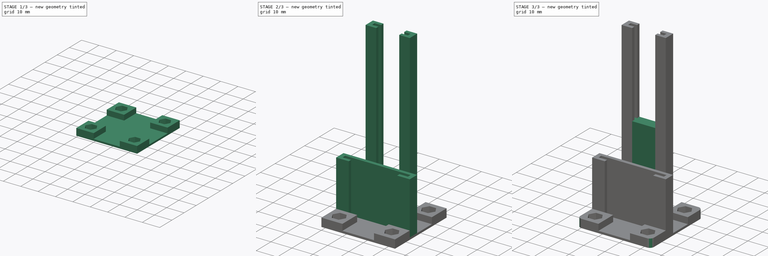
[diagram: build sequence overview — one tinted view per stage of 3, left to right]
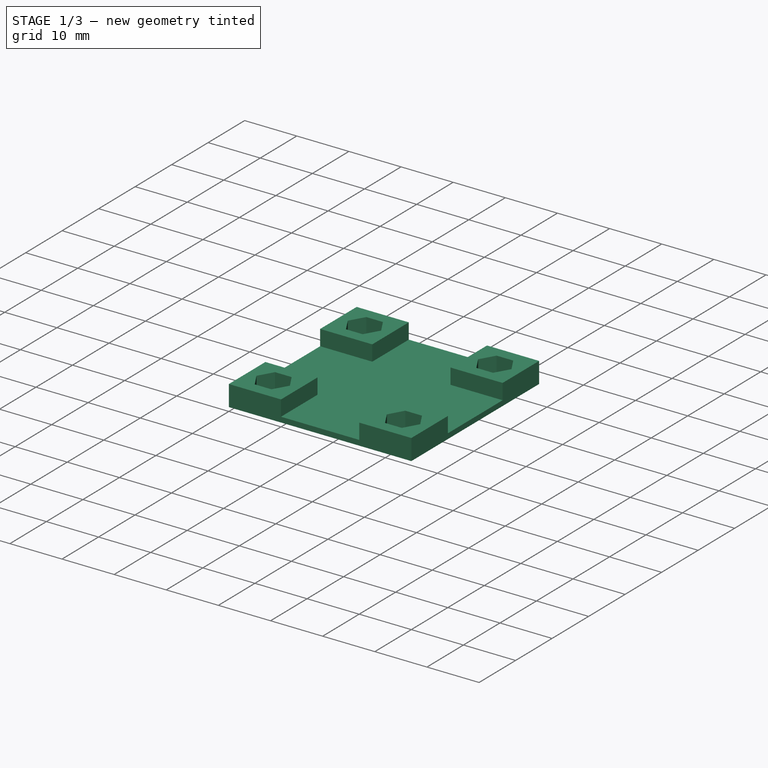
[diagram: stage 1 of 3 — iso view after this stage's code; geometry added in this stage tinted green]
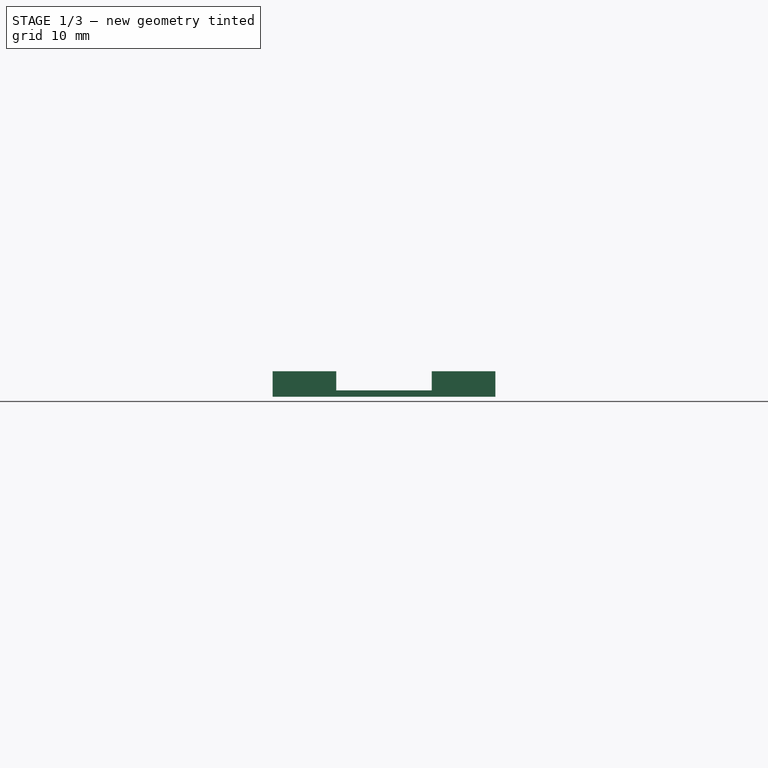
[diagram: stage 1 of 3 — front view after this stage's code; geometry added in this stage tinted green]
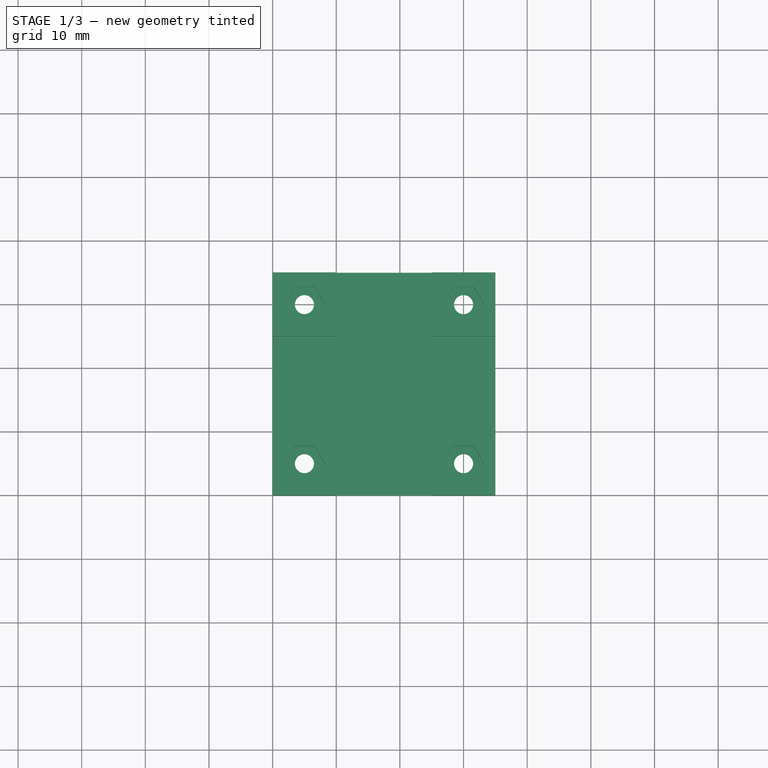
[diagram: stage 1 of 3 — top view after this stage's code; geometry added in this stage tinted green]
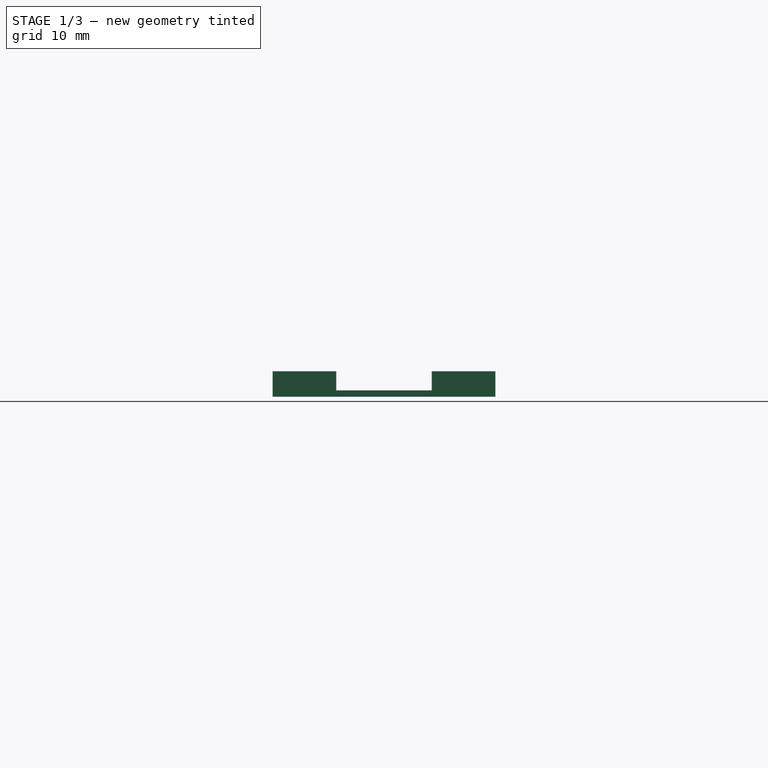
[diagram: stage 1 of 3 — right view after this stage's code; geometry added in this stage tinted green]
FCSTD DOCUMENT  (FreeCAD 0.19R24267 +148 (Git))
Label: PCB_Holder_v2.1
License: All rights reserved
LicenseURL: http://en.wikipedia.org/wiki/All_rights_reserved
objects: Sketcher::SketchObject×5, PartDesign::Pad×5, PartDesign::Fillet×1, PartDesign::Body×1
note: 18 computed .brp shape members not serialized (recipe doc carries the construction recipe); baked Part::Feature solids carry a one-line shape summary decoded from their .brp

FEATURE [Sketcher::SketchObject] Sketch
  FullyConstrained = true
  MapMode = 5
  Support = -> [XY_Plane]
  sketch-geometry (12):
    g0: LineSegment StartX=0 StartY=0 StartZ=0 EndX=35 EndY=0 EndZ=0
    g1: LineSegment StartX=35 StartY=0 StartZ=0 EndX=35 EndY=35 EndZ=0
    g2: LineSegment StartX=35 StartY=35 StartZ=0 EndX=0 EndY=35 EndZ=0
    g3: LineSegment StartX=0 StartY=35 StartZ=0 EndX=0 EndY=0 EndZ=0
    g4: LineSegment StartX=5 StartY=30 StartZ=0 EndX=30 EndY=30 EndZ=0
    g5: LineSegment StartX=30 StartY=30 StartZ=0 EndX=30 EndY=5 EndZ=0
    g6: LineSegment StartX=30 StartY=5 StartZ=0 EndX=5 EndY=5 EndZ=0
    g7: LineSegment StartX=5 StartY=5 StartZ=0 EndX=5 EndY=30 EndZ=0
    g8: Circle CenterX=5 CenterY=30 CenterZ=0 NormalX=0 NormalY=0 NormalZ=1 AngleXU=0 Radius=1.5
    g9: Circle CenterX=30 CenterY=30 CenterZ=0 NormalX=0 NormalY=0 NormalZ=1 AngleXU=0 Radius=1.5
    g10: Circle CenterX=30 CenterY=5 CenterZ=0 NormalX=0 NormalY=0 NormalZ=1 AngleXU=0 Radius=1.5
    g11: Circle CenterX=5 CenterY=5 CenterZ=0 NormalX=0 NormalY=0 NormalZ=1 AngleXU=0 Radius=1.5
  constraints (31):
    c: Coincident(g0,g1)
    c: Coincident(g1,g2)
    c: Coincident(g2,g3)
    c: Coincident(g3,g0)
    c: Horizontal(g0)
    c: Horizontal(g2)
    c: Vertical(g1)
    c: Vertical(g3)
    c: Coincident(g0,g-1)
    c: DistanceX(g2,g2) = 35
    c: DistanceY(g1,g1) = 35
    c: Coincident(g4,g5)
    c: Coincident(g5,g6)
    c: Coincident(g6,g7)
    c: Coincident(g7,g4)
    c: Horizontal(g4)
    c: Horizontal(g6)
    c: Vertical(g5)
    c: Vertical(g7)
    c: DistanceX(g4,g4) = 25
    c: DistanceY(g5,g5) = 25
    c: DistanceY(g0,g6) = 5
    c: DistanceX(g0,g6) = 5
    c: Coincident(g8,g4)
    c: Radius(g8) = 1.5
    c: Coincident(g9,g4)
    c: Coincident(g10,g5)
    c: Coincident(g11,g6)
    c: Equal(g9,g10)
    c: Equal(g10,g11)
    c: Equal(g11,g8)
FEATURE [PartDesign::Pad] Pad
  Direction = (1,1,1)
  Length = 1
  Length2 = 100
  Profile = -> Sketch
  Type = 0
FEATURE [Sketcher::SketchObject] Sketch001
  FullyConstrained = true
  MapMode = 5
  Placement = pos=(0,0,1) rot=(0,0,1;0rad)
  Support = -> [Pad]
  sketch-geometry (52):
    g0: LineSegment StartX=5 StartY=30 StartZ=0 EndX=30 EndY=30 EndZ=0
    g1: LineSegment StartX=30 StartY=30 StartZ=0 EndX=30 EndY=5 EndZ=0
    g2: LineSegment StartX=30 StartY=5 StartZ=0 EndX=5 EndY=5 EndZ=0
    g3: LineSegment StartX=5 StartY=5 StartZ=0 EndX=5 EndY=30 EndZ=0
    g4: LineSegment StartX=8.2 StartY=30 StartZ=0 EndX=6.6 EndY=32.7713 EndZ=0
    g5: LineSegment StartX=6.6 StartY=32.7713 StartZ=0 EndX=3.4 EndY=32.7713 EndZ=0
    g6: LineSegment StartX=3.4 StartY=32.7713 StartZ=0 EndX=1.8 EndY=30 EndZ=0
    g7: LineSegment StartX=1.8 StartY=30 StartZ=0 EndX=3.4 EndY=27.2287 EndZ=0
    g8: LineSegment StartX=3.4 StartY=27.2287 StartZ=0 EndX=6.6 EndY=27.2287 EndZ=0
    g9: LineSegment StartX=6.6 StartY=27.2287 StartZ=0 EndX=8.2 EndY=30 EndZ=0
    g10: Circle CenterX=5 CenterY=30 CenterZ=0 NormalX=0 NormalY=0 NormalZ=1 AngleXU=0 Radius=3.2
    g11: LineSegment StartX=31.6 StartY=27.2287 StartZ=0 EndX=33.2 EndY=30 EndZ=0
    g12: LineSegment StartX=33.2 StartY=30 StartZ=0 EndX=31.6 EndY=32.7713 EndZ=0
    g13: LineSegment StartX=31.6 StartY=32.7713 StartZ=0 EndX=28.4 EndY=32.7713 EndZ=0
    g14: LineSegment StartX=28.4 StartY=32.7713 StartZ=0 EndX=26.8 EndY=30 EndZ=0
    g15: LineSegment StartX=26.8 StartY=30 StartZ=0 EndX=28.4 EndY=27.2287 EndZ=0
    g16: LineSegment StartX=28.4 StartY=27.2287 StartZ=0 EndX=31.6 EndY=27.2287 EndZ=0
    g17: Circle CenterX=30 CenterY=30 CenterZ=0 NormalX=0 NormalY=0 NormalZ=1 AngleXU=0 Radius=3.2
    g18: LineSegment StartX=31.6 StartY=2.22872 StartZ=0 EndX=33.2 EndY=5 EndZ=0
    g19: LineSegment StartX=33.2 StartY=5 StartZ=0 EndX=31.6 EndY=7.77128 EndZ=0
    g20: LineSegment StartX=31.6 StartY=7.77128 StartZ=0 EndX=28.4 EndY=7.77128 EndZ=0
    g21: LineSegment StartX=28.4 StartY=7.77128 StartZ=0 EndX=26.8 EndY=5 EndZ=0
    g22: LineSegment StartX=26.8 StartY=5 StartZ=0 EndX=28.4 EndY=2.22872 EndZ=0
    g23: LineSegment StartX=28.4 StartY=2.22872 StartZ=0 EndX=31.6 EndY=2.22872 EndZ=0
    g24: Circle CenterX=30 CenterY=5 CenterZ=0 NormalX=0 NormalY=0 NormalZ=1 AngleXU=0 Radius=3.2
    g25: LineSegment StartX=8.2 StartY=5 StartZ=0 EndX=6.6 EndY=7.77128 EndZ=0
    g26: LineSegment StartX=6.6 StartY=7.77128 StartZ=0 EndX=3.4 EndY=7.77128 EndZ=0
    g27: LineSegment StartX=3.4 StartY=7.77128 StartZ=0 EndX=1.8 EndY=5 EndZ=0
    g28: LineSegment StartX=1.8 StartY=5 StartZ=0 EndX=3.4 EndY=2.22872 EndZ=0
    g29: LineSegment StartX=3.4 StartY=2.22872 StartZ=0 EndX=6.6 EndY=2.22872 EndZ=0
    g30: LineSegment StartX=6.6 StartY=2.22872 StartZ=0 EndX=8.2 EndY=5 EndZ=0
    g31: Circle CenterX=5 CenterY=5 CenterZ=0 NormalX=0 NormalY=0 NormalZ=1 AngleXU=0 Radius=3.2
    g32: LineSegment StartX=0 StartY=35 StartZ=0 EndX=10 EndY=35 EndZ=0
    g33: LineSegment StartX=10 StartY=35 StartZ=0 EndX=10 EndY=25 EndZ=0
    g34: LineSegment StartX=10 StartY=25 StartZ=0 EndX=0 EndY=25 EndZ=0
    g35: LineSegment StartX=0 StartY=25 StartZ=0 EndX=0 EndY=35 EndZ=0
    g36: LineSegment StartX=35 StartY=35 StartZ=0 EndX=25 EndY=35 EndZ=0
    g37: LineSegment StartX=25 StartY=35 StartZ=0 EndX=25 EndY=25 EndZ=0
    g38: LineSegment StartX=25 StartY=25 StartZ=0 EndX=35 EndY=25 EndZ=0
    g39: LineSegment StartX=35 StartY=25 StartZ=0 EndX=35 EndY=35 EndZ=0
    g40: LineSegment StartX=0 StartY=10 StartZ=0 EndX=10 EndY=10 EndZ=0
    g41: LineSegment StartX=10 StartY=10 StartZ=0 EndX=10 EndY=0 EndZ=0
    g42: LineSegment StartX=10 StartY=0 StartZ=0 EndX=0 EndY=0 EndZ=0
    g43: LineSegment StartX=0 StartY=0 StartZ=0 EndX=0 EndY=10 EndZ=0
    g44: LineSegment StartX=25 StartY=10 StartZ=0 EndX=35 EndY=10 EndZ=0
    g45: LineSegment StartX=35 StartY=10 StartZ=0 EndX=35 EndY=0 EndZ=0
    g46: LineSegment StartX=35 StartY=0 StartZ=0 EndX=25 EndY=0 EndZ=0
    g47: LineSegment StartX=25 StartY=0 StartZ=0 EndX=25 EndY=10 EndZ=0
    g48: LineSegment StartX=35 StartY=25 StartZ=0 EndX=35 EndY=10 EndZ=0
    g49: LineSegment StartX=25 StartY=0 StartZ=0 EndX=10 EndY=0 EndZ=0
    g50: LineSegment StartX=0 StartY=10 StartZ=0 EndX=0 EndY=25 EndZ=0
    g51: LineSegment StartX=10 StartY=35 StartZ=0 EndX=25 EndY=35 EndZ=0
  constraints (132):
    c: Coincident(g0,g1)
    c: Coincident(g1,g2)
    c: Coincident(g2,g3)
    c: Coincident(g3,g0)
    c: Horizontal(g0)
    c: Horizontal(g2)
    c: Vertical(g1)
    c: Vertical(g3)
    c: DistanceX(g2,g2) = 25
    c: DistanceY(g3,g3) = 25
    c: DistanceY(g-1,g2) = 5
    c: DistanceX(g-1,g2) = 5
    c: Coincident(g4,g5)
    c: Coincident(g5,g6)
    c: Coincident(g6,g7)
    c: Coincident(g7,g8)
    c: Coincident(g8,g9)
    c: Coincident(g9,g4)
    c: Equal(g4, g5-g9) x5
    c: PointOnObject(g4,g10)
    c: PointOnObject(g5,g10)
    c: PointOnObject(g6,g10)
    c: PointOnObject(g7,g10)
    c: PointOnObject(g8,g10)
    c: PointOnObject(g9,g10)
    c: Coincident(g10,g0)
    c: Radius(g10) = 3.2
    c: Coincident(g11,g12)
    c: Coincident(g12,g13)
    c: Coincident(g13,g14)
    c: Coincident(g14,g15)
    c: Coincident(g15,g16)
    c: Coincident(g16,g11)
    c: Equal(g11, g12-g16) x5
    c: PointOnObject(g11,g17)
    c: PointOnObject(g12,g17)
    c: PointOnObject(g13,g17)
    c: PointOnObject(g14,g17)
    c: PointOnObject(g15,g17)
    c: PointOnObject(g16,g17)
    c: Coincident(g17,g0)
    c: Coincident(g18,g19)
    c: Coincident(g19,g20)
    c: Coincident(g20,g21)
    c: Coincident(g21,g22)
    c: Coincident(g22,g23)
    c: Coincident(g23,g18)
    c: Equal(g18, g19-g23) x5
    c: PointOnObject(g18,g24)
    c: PointOnObject(g19,g24)
    c: PointOnObject(g20,g24)
    c: PointOnObject(g21,g24)
    c: PointOnObject(g22,g24)
    c: PointOnObject(g23,g24)
    c: Coincident(g24,g1)
    c: Coincident(g25,g26)
    c: Coincident(g26,g27)
    c: Coincident(g27,g28)
    c: Coincident(g28,g29)
    c: Coincident(g29,g30)
    c: Coincident(g30,g25)
    c: Equal(g25, g26-g30) x5
    c: PointOnObject(g25,g31)
    c: PointOnObject(g26,g31)
    c: PointOnObject(g27,g31)
    c: PointOnObject(g28,g31)
    c: PointOnObject(g29,g31)
    c: PointOnObject(g30,g31)
    c: Coincident(g31,g2)
    c: Equal(g17,g31)
    c: Equal(g31,g24)
    c: Equal(g24,g10)
    c: Horizontal(g5)
    c: Horizontal(g13)
    c: Horizontal(g26)
    c: Horizontal(g20)
    c: Coincident(g32,g33)
    c: Coincident(g33,g34)
    c: Coincident(g34,g35)
    c: Coincident(g35,g32)
    c: Horizontal(g32)
    c: Horizontal(g34)
    c: Vertical(g33)
    c: Vertical(g35)
    c: PointOnObject(g32,g-2)
    c: Coincident(g36,g37)
    c: Coincident(g37,g38)
    c: Coincident(g38,g39)
    c: Coincident(g39,g36)
    c: Horizontal(g36)
    c: Horizontal(g38)
    c: Vertical(g37)
    c: Vertical(g39)
    c: Coincident(g40,g41)
    c: Coincident(g41,g42)
    c: Coincident(g42,g43)
    c: Coincident(g43,g40)
    c: Horizontal(g40)
    c: Horizontal(g42)
    c: Vertical(g41)
    c: Vertical(g43)
    c: PointOnObject(g40,g-2)
    c: PointOnObject(g41,g-1)
    c: Coincident(g44,g45)
    c: Coincident(g45,g46)
    c: Coincident(g46,g47)
    c: Coincident(g47,g44)
    c: Horizontal(g44)
    c: Horizontal(g46)
    c: Vertical(g45)
    c: Vertical(g47)
    c: PointOnObject(g45,g-1)
    c: Equal(g42,g41)
    c: Equal(g41,g47)
    c: Equal(g47,g46)
    c: Equal(g46,g37)
    c: Equal(g37,g36)
    c: Equal(g36,g33)
    c: Equal(g33,g32)
    c: DistanceX(g42,g42) = 10
    c: Coincident(g48,g38)
    c: Coincident(g48,g44)
    c: Vertical(g48)
    c: Coincident(g49,g46)
    c: Coincident(g49,g41)
    c: Coincident(g50,g40)
    c: Coincident(g50,g34)
    c: Coincident(g51,g32)
    c: Coincident(g51,g36)
    c: Horizontal(g51)
    c: Equal(g50,g49)
    c: DistanceX(g49,g49) = 15
FEATURE [PartDesign::Pad] Pad001
  BaseFeature = -> Pad
  Direction = (1,1,1)
  Length = 3
  Length2 = 100
  Profile = -> Sketch001
  Type = 0
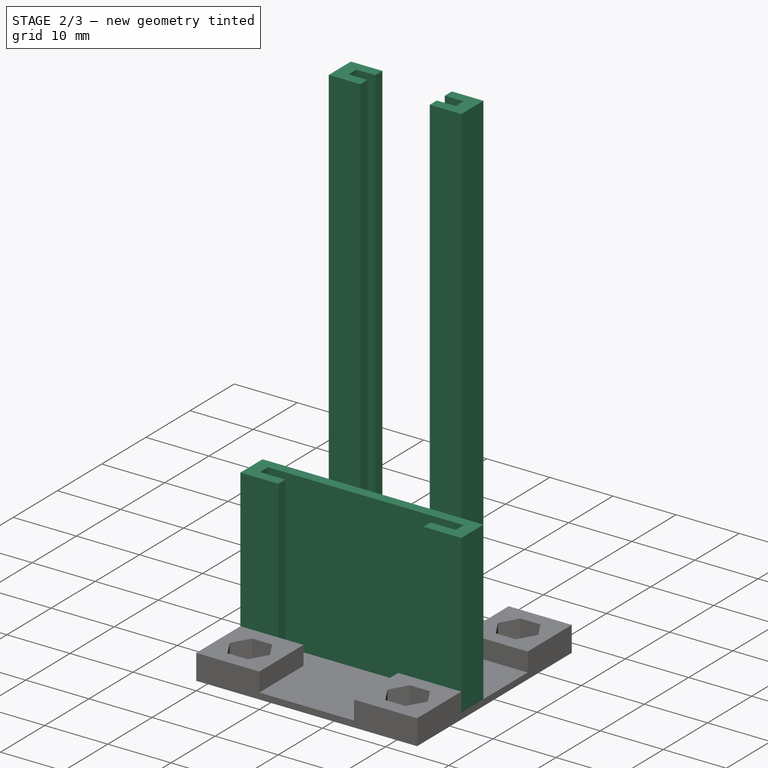
[diagram: stage 2 of 3 — iso view after this stage's code; geometry added in this stage tinted green]
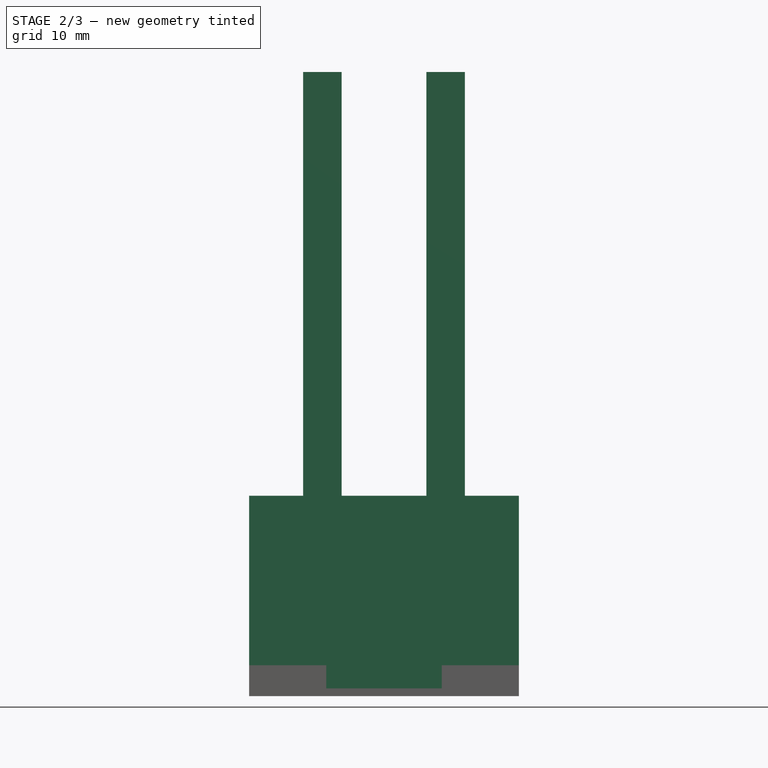
[diagram: stage 2 of 3 — front view after this stage's code; geometry added in this stage tinted green]
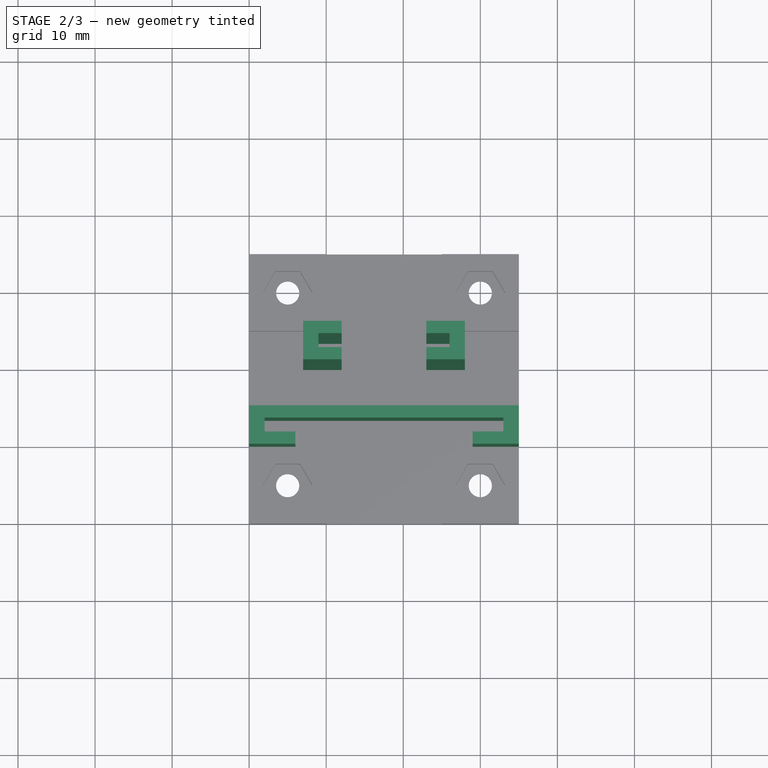
[diagram: stage 2 of 3 — top view after this stage's code; geometry added in this stage tinted green]
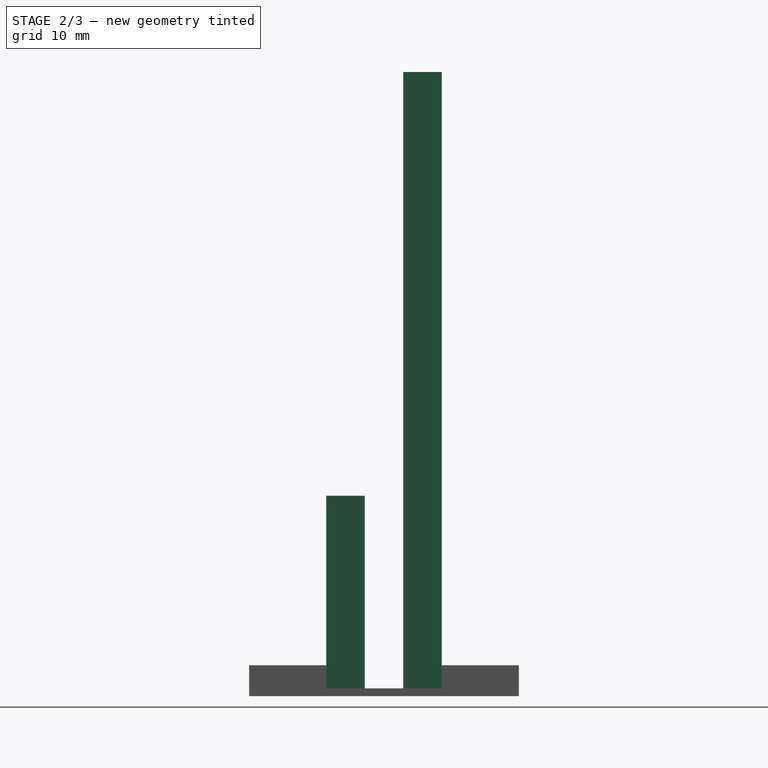
[diagram: stage 2 of 3 — right view after this stage's code; geometry added in this stage tinted green]
FEATURE [Sketcher::SketchObject] Sketch002
  FullyConstrained = true
  MapMode = 5
  Placement = pos=(0,0,1) rot=(0,0,1;0rad)
  Support = -> [Pad001]
  sketch-geometry (18):
    g0: LineSegment StartX=7 StartY=25 StartZ=0 EndX=7 EndY=20 EndZ=0
    g1: LineSegment StartX=7 StartY=20 StartZ=0 EndX=12 EndY=20 EndZ=0
    g2: LineSegment StartX=9 StartY=23.4 StartZ=0 EndX=9 EndY=21.6 EndZ=0
    g3: LineSegment StartX=9 StartY=21.6 StartZ=0 EndX=12 EndY=21.6 EndZ=0
    g4: LineSegment StartX=12 StartY=21.6 StartZ=0 EndX=12 EndY=20 EndZ=0
    g5: LineSegment StartX=26 StartY=23.4 StartZ=0 EndX=26 EndY=21.6 EndZ=0
    g6: LineSegment StartX=26 StartY=21.6 StartZ=0 EndX=23 EndY=21.6 EndZ=0
    g7: LineSegment StartX=23 StartY=21.6 StartZ=0 EndX=23 EndY=20 EndZ=0
    g8: LineSegment StartX=23 StartY=20 StartZ=0 EndX=28 EndY=20 EndZ=0
    g9: LineSegment StartX=28 StartY=20 StartZ=0 EndX=28 EndY=25 EndZ=0
    g10: LineSegment StartX=26 StartY=23.4 StartZ=0 EndX=26 EndY=25 EndZ=0
    g11: LineSegment StartX=7 StartY=25 StartZ=0 EndX=12 EndY=25 EndZ=0
    g12: LineSegment StartX=12 StartY=25 StartZ=0 EndX=12 EndY=23.4 EndZ=0
    g13: LineSegment StartX=12 StartY=23.4 StartZ=0 EndX=9 EndY=23.4 EndZ=0
    g14: LineSegment StartX=28 StartY=25 StartZ=0 EndX=23 EndY=25 EndZ=0
    g15: LineSegment StartX=23 StartY=25 StartZ=0 EndX=23 EndY=23.4 EndZ=0
    g16: LineSegment StartX=23 StartY=23.4 StartZ=0 EndX=26 EndY=23.4 EndZ=0
    g17: LineSegment StartX=23 StartY=20 StartZ=0 EndX=12 EndY=20 EndZ=0
  constraints (53):
    c: Vertical(g0)
    c: Coincident(g1,g0)
    c: Horizontal(g1)
    c: Vertical(g2)
    c: Coincident(g3,g2)
    c: Horizontal(g3)
    c: Coincident(g4,g3)
    c: Coincident(g4,g1)
    c: Vertical(g4)
    c: Vertical(g5)
    c: Coincident(g6,g5)
    c: Horizontal(g6)
    c: Coincident(g7,g6)
    c: Vertical(g7)
    c: Coincident(g8,g7)
    c: Horizontal(g8)
    c: Coincident(g9,g8)
    c: Vertical(g9)
    c: Equal(g1,g8)
    c: Equal(g4,g7)
    c: Equal(g2,g5)
    c: Equal(g3,g6)
    c: DistanceY(g2,g2) = 1.8
    c: DistanceY(g0,g0) = 5
    c: DistanceX(g1,g1) = 5
    c: DistanceX(g3,g3) = 3
    c: DistanceX(g2,g5) = 17
    c: DistanceX(g-1,g0) = 7
    c: DistanceY(g-1,g0) = 25
    c: Coincident(g10,g5)
    c: Vertical(g10)
    c: Equal(g10,g7)
    c: Coincident(g11,g0)
    c: Horizontal(g11)
    c: Coincident(g12,g11)
    c: Vertical(g12)
    c: Coincident(g13,g12)
    c: Coincident(g13,g2)
    c: Horizontal(g13)
    c: Coincident(g14,g9)
    c: Horizontal(g14)
    c: Coincident(g15,g14)
    c: Vertical(g15)
    c: Coincident(g16,g15)
    c: Coincident(g16,g5)
    c: Horizontal(g16)
    c: Equal(g11,g14)
    c: Equal(g14,g8)
    c: Equal(g12,g15)
    c: Equal(g15,g7)
    c: Coincident(g17,g7)
    c: Coincident(g17,g1)
    c: Horizontal(g17)
FEATURE [PartDesign::Pad] Pad002
  BaseFeature = -> Pad001
  Direction = (1,1,1)
  Length = 80
  Length2 = 100
  Profile = -> Sketch002
  Type = 0
FEATURE [Sketcher::SketchObject] Sketch003
  FullyConstrained = true
  MapMode = 5
  Placement = pos=(0,0,1) rot=(0,0,1;0rad)
  Support = -> [Pad002]
  sketch-geometry (13):
    g0: LineSegment StartX=0 StartY=15 StartZ=0 EndX=0 EndY=10 EndZ=0
    g1: LineSegment StartX=0 StartY=10 StartZ=0 EndX=6 EndY=10 EndZ=0
    g2: LineSegment StartX=6 StartY=10 StartZ=0 EndX=6 EndY=11.6 EndZ=0
    g3: LineSegment StartX=6 StartY=11.6 StartZ=0 EndX=2 EndY=11.6 EndZ=0
    g4: LineSegment StartX=2 StartY=11.6 StartZ=0 EndX=2 EndY=13.4 EndZ=0
    g5: LineSegment StartX=33 StartY=13.4 StartZ=0 EndX=33 EndY=11.6 EndZ=0
    g6: LineSegment StartX=33 StartY=11.6 StartZ=0 EndX=29 EndY=11.6 EndZ=0
    g7: LineSegment StartX=29 StartY=11.6 StartZ=0 EndX=29 EndY=10 EndZ=0
    g8: LineSegment StartX=29 StartY=10 StartZ=0 EndX=35 EndY=10 EndZ=0
    g9: LineSegment StartX=35 StartY=10 StartZ=0 EndX=35 EndY=15 EndZ=0
    g10: LineSegment StartX=0 StartY=15 StartZ=0 EndX=35 EndY=15 EndZ=0
    g11: LineSegment StartX=2 StartY=13.4 StartZ=0 EndX=33 EndY=13.4 EndZ=0
    g12: LineSegment StartX=33 StartY=13.4 StartZ=0 EndX=33 EndY=15 EndZ=0
  constraints (39):
    c: Vertical(g0)
    c: Coincident(g1,g0)
    c: Horizontal(g1)
    c: Coincident(g2,g1)
    c: Vertical(g2)
    c: Coincident(g3,g2)
    c: Horizontal(g3)
    c: Coincident(g4,g3)
    c: Vertical(g4)
    c: Vertical(g5)
    c: Coincident(g6,g5)
    c: Horizontal(g6)
    c: Coincident(g7,g6)
    c: Vertical(g7)
    c: Coincident(g8,g7)
    c: Horizontal(g8)
    c: Coincident(g9,g8)
    c: Vertical(g9)
    c: Equal(g1,g8)
    c: Equal(g0,g9)
    c: DistanceY(g4,g4) = 1.8
    c: DistanceY(g0,g0) = 5
    c: DistanceX(g1,g1) = 6
    c: DistanceX(g3,g3) = 4
    c: DistanceY(g-1,g0) = 10
    c: DistanceX(g0,g8) = 35
    c: PointOnObject(g0,g-2)
    c: Coincident(g10,g0)
    c: Coincident(g10,g9)
    c: Horizontal(g10)
    c: Coincident(g11,g4)
    c: Coincident(g11,g5)
    c: Horizontal(g11)
    c: Coincident(g12,g5)
    c: PointOnObject(g12,g10)
    c: Vertical(g12)
    c: Equal(g6,g3)
    c: Equal(g2,g7)
    c: Equal(g7,g12)
FEATURE [PartDesign::Pad] Pad003
  BaseFeature = -> Pad002
  Direction = (1,1,1)
  Length = 25
  Length2 = 100
  Profile = -> Sketch003
  Type = 0
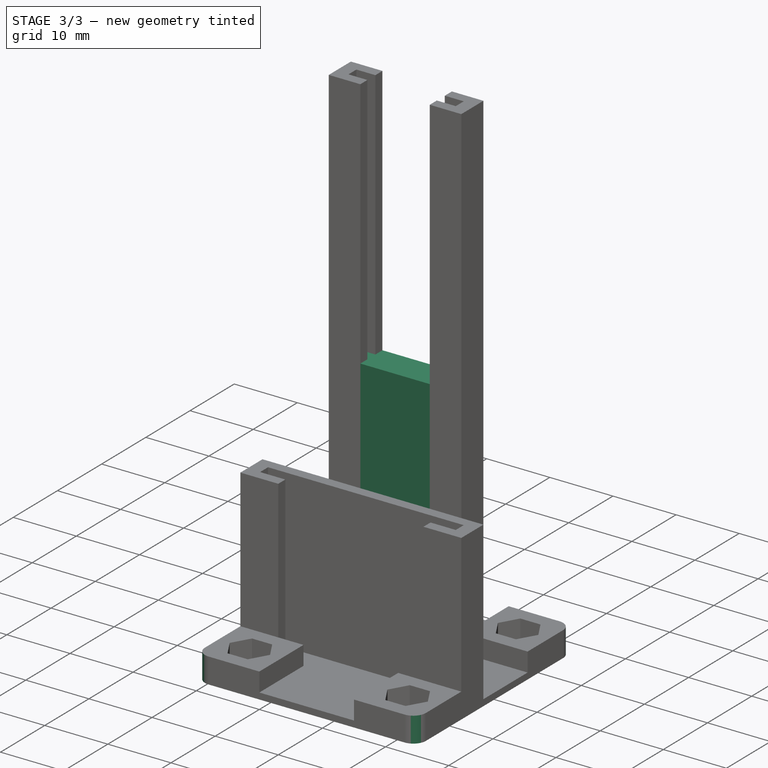
[diagram: stage 3 of 3 — iso view after this stage's code; geometry added in this stage tinted green]
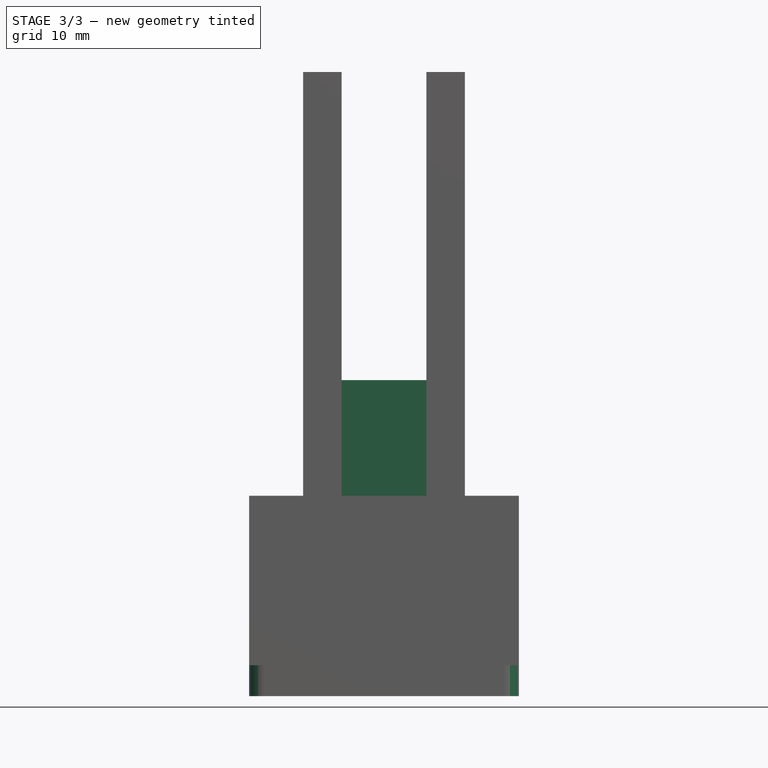
[diagram: stage 3 of 3 — front view after this stage's code; geometry added in this stage tinted green]
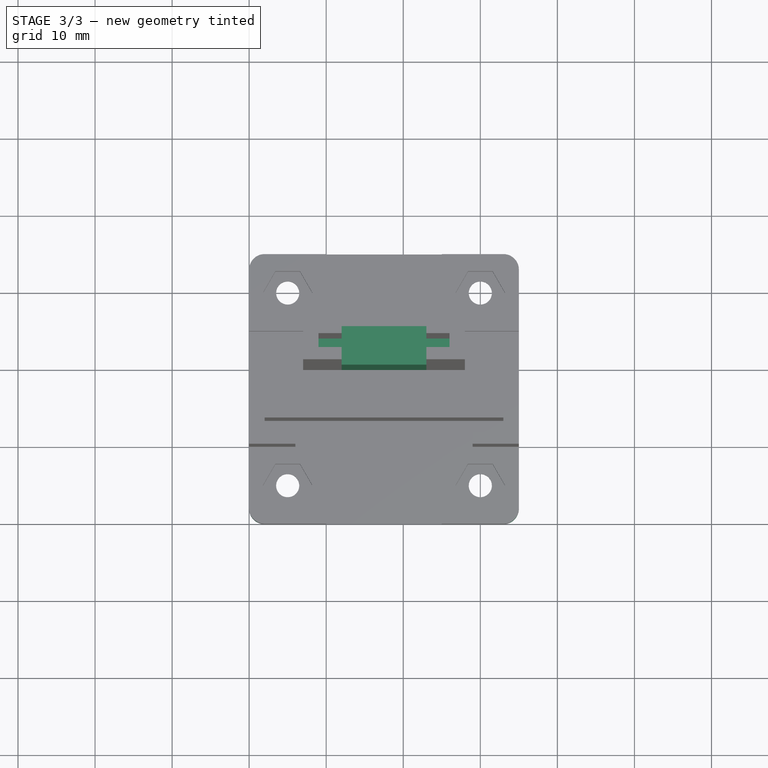
[diagram: stage 3 of 3 — top view after this stage's code; geometry added in this stage tinted green]
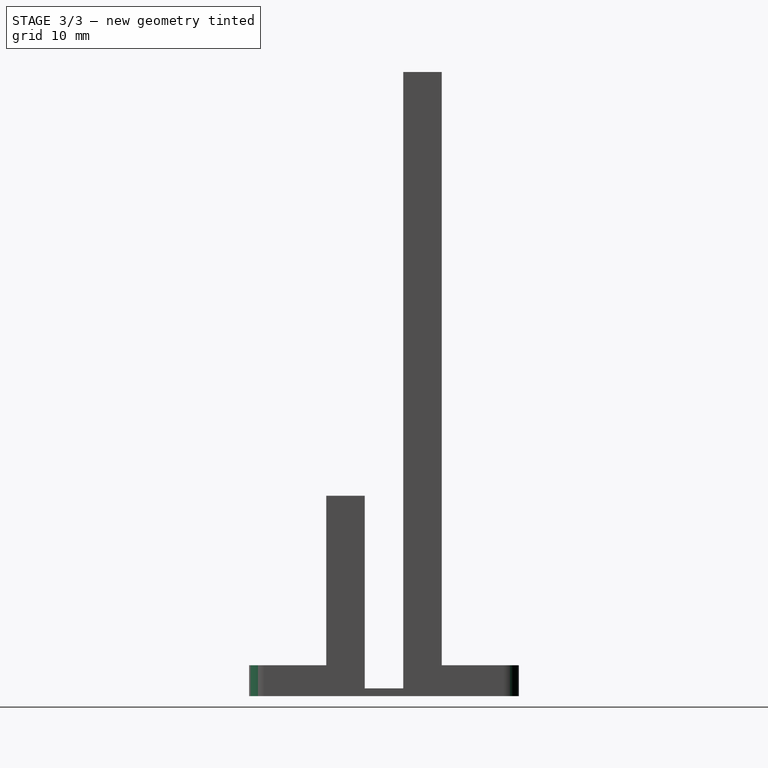
[diagram: stage 3 of 3 — right view after this stage's code; geometry added in this stage tinted green]
FEATURE [Sketcher::SketchObject] Sketch004
  FullyConstrained = true
  MapMode = 5
  Placement = pos=(0,0,1) rot=(0,0,1;0rad)
  Support = -> [Pad003]
  sketch-geometry (13):
    g0: LineSegment StartX=12 StartY=25 StartZ=0 EndX=23 EndY=25 EndZ=0
    g1: LineSegment StartX=23 StartY=25 StartZ=0 EndX=23 EndY=23.4 EndZ=0
    g2: LineSegment StartX=12 StartY=23.4 StartZ=0 EndX=12 EndY=25 EndZ=0
    g3: LineSegment StartX=12 StartY=23.4 StartZ=0 EndX=9 EndY=23.4 EndZ=0
    g4: LineSegment StartX=9 StartY=23.4 StartZ=0 EndX=9 EndY=21.6 EndZ=0
    g5: LineSegment StartX=9 StartY=21.6 StartZ=0 EndX=12 EndY=21.6 EndZ=0
    g6: LineSegment StartX=12 StartY=21.6 StartZ=0 EndX=12 EndY=20 EndZ=0
    g7: LineSegment StartX=12 StartY=20 StartZ=0 EndX=23 EndY=20 EndZ=0
    g8: LineSegment StartX=23 StartY=20 StartZ=0 EndX=23 EndY=21.6 EndZ=0
    g9: LineSegment StartX=23 StartY=21.6 StartZ=0 EndX=26 EndY=21.6 EndZ=0
    g10: LineSegment StartX=26 StartY=21.6 StartZ=0 EndX=26 EndY=23.4 EndZ=0
    g11: LineSegment StartX=26 StartY=23.4 StartZ=0 EndX=23 EndY=23.4 EndZ=0
    g12: LineSegment StartX=12 StartY=23.4 StartZ=0 EndX=23 EndY=23.4 EndZ=0
  constraints (38):
    c: Coincident(g0,g1)
    c: Coincident(g2,g0)
    c: Horizontal(g0)
    c: Vertical(g1)
    c: Vertical(g2)
    c: DistanceX(g0,g0) = 11
    c: DistanceY(g2,g2) = 1.6
    c: DistanceY(g-1,g2) = 23.4
    c: DistanceX(g-1,g2) = 12
    c: Horizontal(g3)
    c: Coincident(g4,g3)
    c: Vertical(g4)
    c: Coincident(g5,g4)
    c: Horizontal(g5)
    c: Coincident(g6,g5)
    c: Vertical(g6)
    c: Coincident(g7,g6)
    c: Horizontal(g7)
    c: Coincident(g8,g7)
    c: Vertical(g8)
    c: Coincident(g9,g8)
    c: Horizontal(g9)
    c: Coincident(g10,g9)
    c: Vertical(g10)
    c: Coincident(g11,g10)
    c: Coincident(g11,g1)
    c: Horizontal(g11)
    c: DistanceX(g7,g7) = 11
    c: DistanceX(g-1,g6) = 12
    c: DistanceY(g-1,g6) = 20
    c: DistanceY(g4,g4) = 1.8
    c: DistanceY(g10,g10) = 1.8
    c: DistanceX(g9,g9) = 3
    c: DistanceX(g5,g5) = 3
    c: Coincident(g12,g2)
    c: Coincident(g12,g1)
    c: Horizontal(g12)
    c: Coincident(g3,g2)
FEATURE [PartDesign::Pad] Pad004
  BaseFeature = -> Pad003
  Direction = (1,1,1)
  Length = 40
  Length2 = 100
  Profile = -> Sketch004
  Type = 0
FEATURE [PartDesign::Fillet] Fillet
  Base = -> Pad004 [Edge45,Edge7,Edge74,Edge13,Edge25,Edge1,Edge38,Edge2]
  BaseFeature = -> Pad004
  Radius = 2
  SupportTransform = false
FEATURE [PartDesign::Body] Body
  Group = -> [Sketch,Pad,Sketch001,Pad001,Sketch002,Pad002,Sketch003,Pad003,Sketch004,Pad004,Fillet]
  Origin = -> Origin
  Tip = -> Fillet
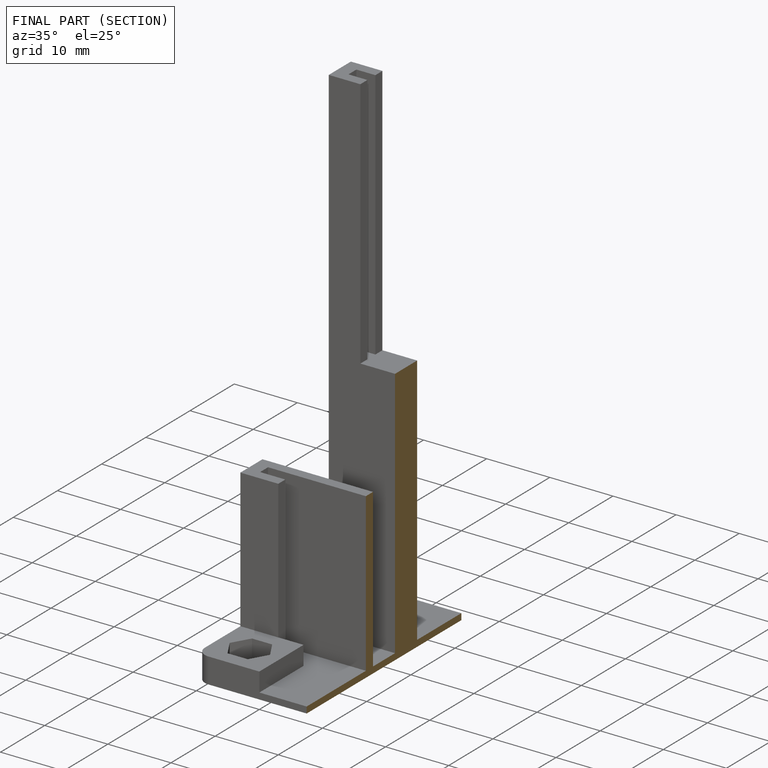
[diagram: finished part — half-section view (interior)]
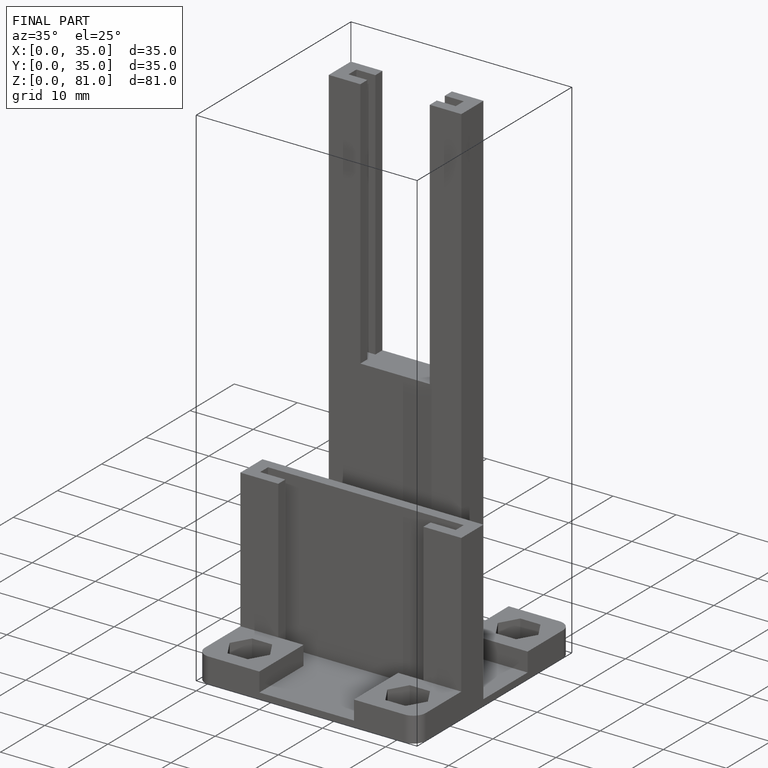
[diagram: finished part — iso view with bounding-box wireframe]
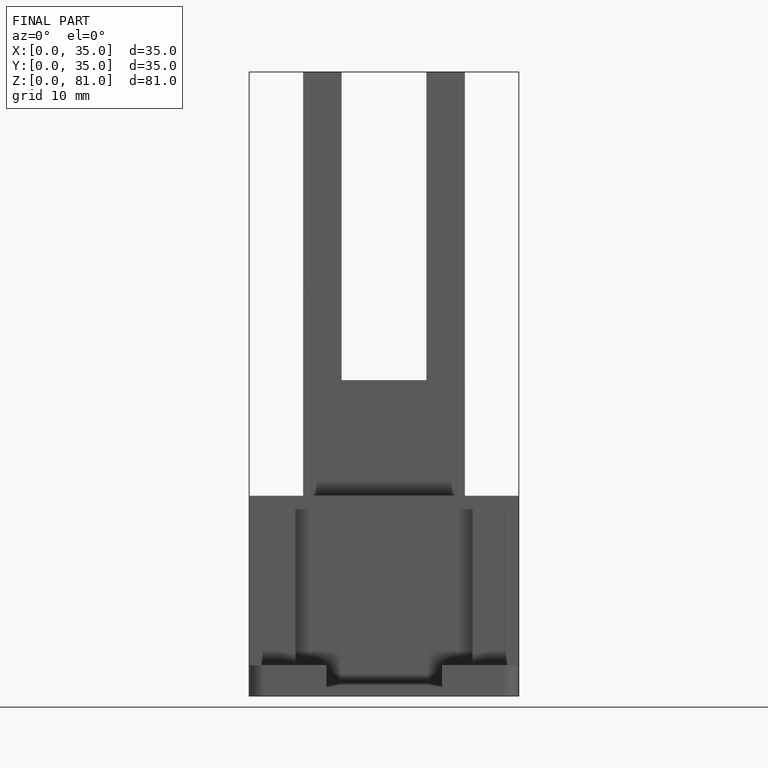
[diagram: finished part — front view with bounding-box wireframe]
